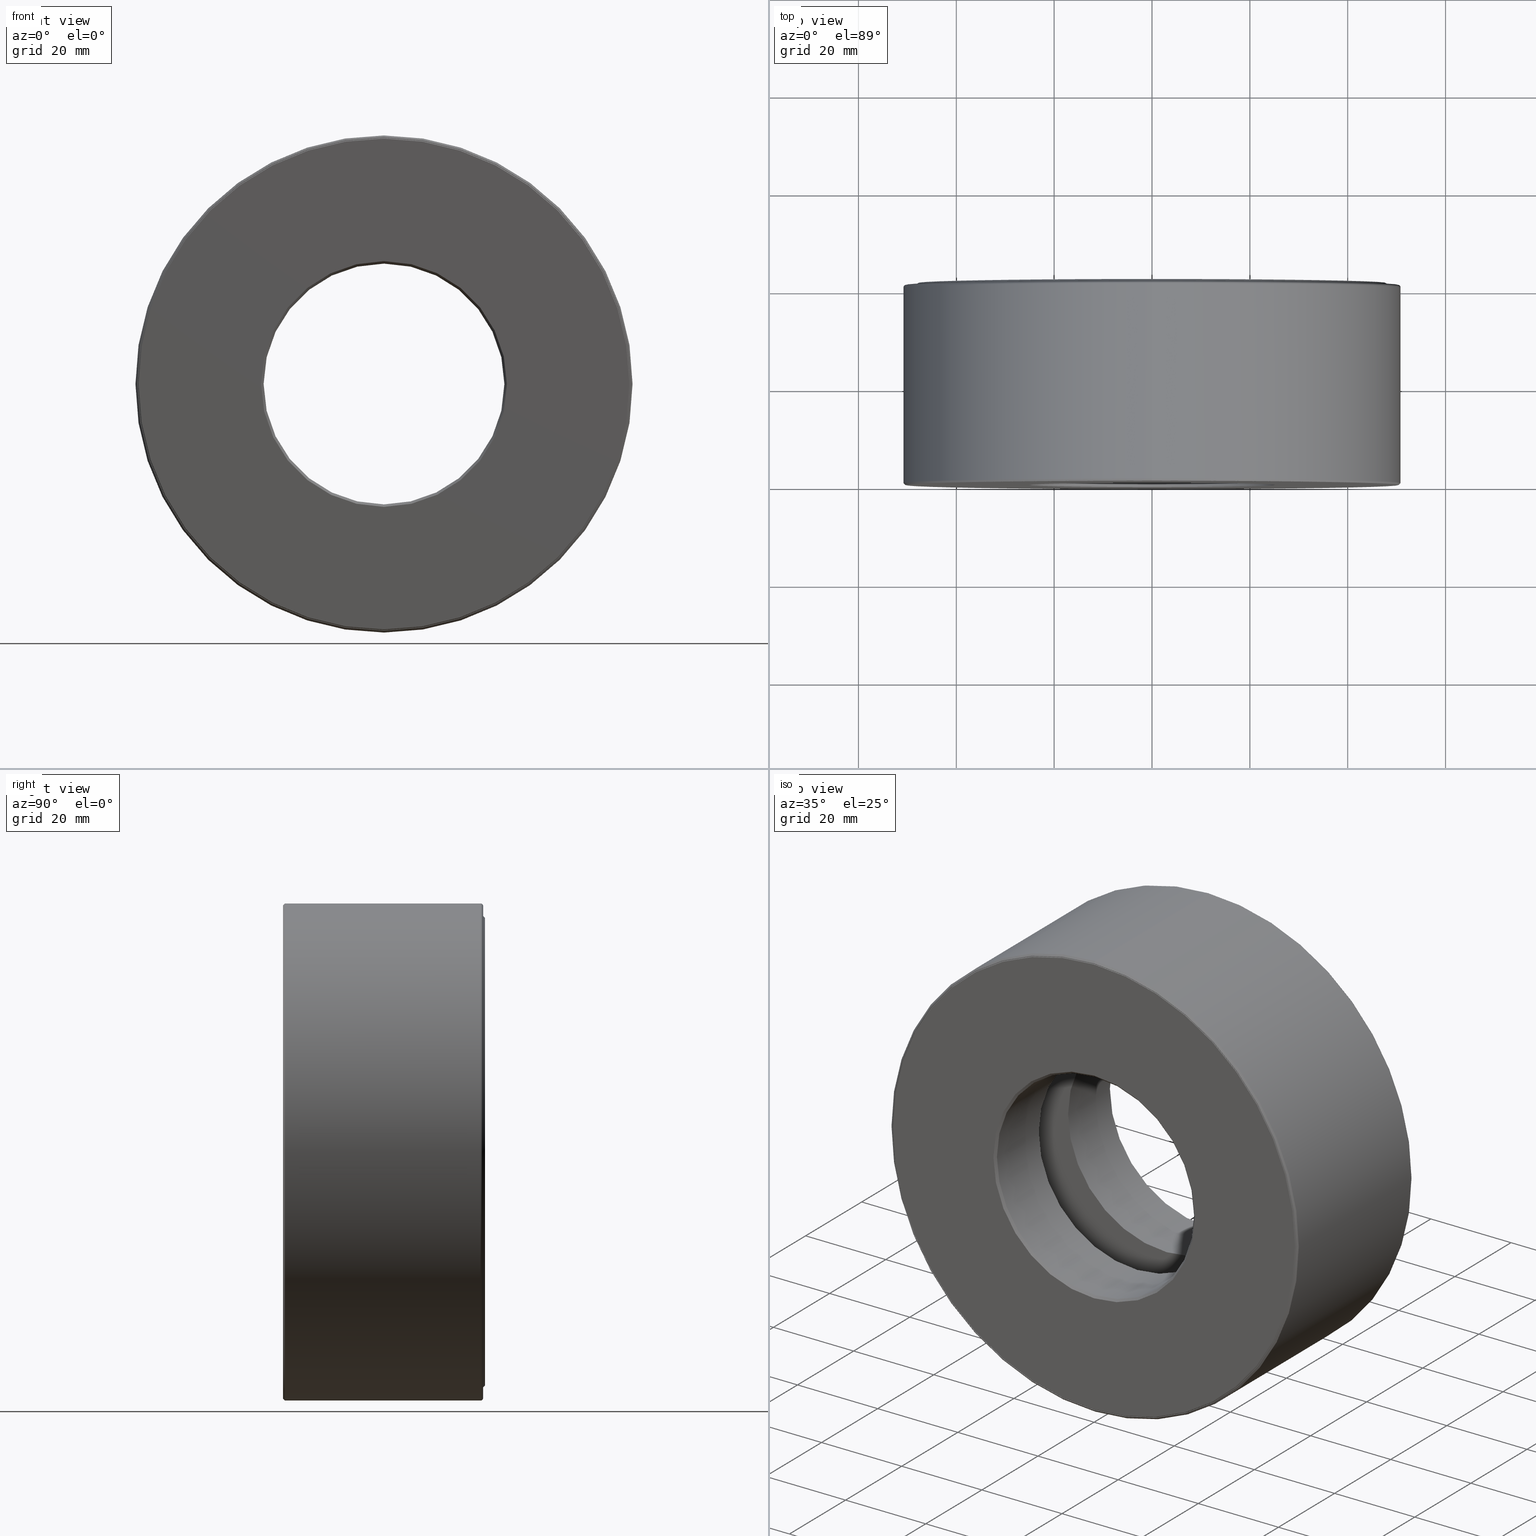
[diagram: canonical four-view strip — front | top / right | iso, engineering-drawing reading convention]
A machine part, canonical four-view strip (front | top / right | iso — engineering-drawing reading convention). The complete STEP part file that produces these views, byte-faithful:
ISO-10303-21;
HEADER;
FILE_DESCRIPTION (( 'STEP AP203' ),
    '1' );
FILE_NAME ('T-100-41A.step',
    '2016-06-29T18:27:36',
    ( '' ),
    ( '' ),
    'SwSTEP 2.0',
    'SolidWorks 2016',
    '' );
FILE_SCHEMA (( 'CONFIG_CONTROL_DESIGN' ));
ENDSEC;

DATA;
#1 = DIRECTION ( 'NONE',  ( -3.491481338843133000E-015, 0.0000000000000000000, -1.000000000000000000 ) ) ;
#2 = FACE_OUTER_BOUND ( 'NONE', #497, .T. ) ;
#3 = AXIS2_PLACEMENT_3D ( 'NONE', #98, #464, #103 ) ;
#4 = ADVANCED_FACE ( 'NONE', ( #586, #89 ), #112, .T. ) ;
#5 = CARTESIAN_POINT ( 'NONE',  ( 0.0000000000000000000, 1.589999999999999400, 1.919999999999999900 ) ) ;
#6 = CARTESIAN_POINT ( 'NONE',  ( -1.966834023707050000E-015, 1.018749999999999800, 0.0000000000000000000 ) ) ;
#7 = SECURITY_CLASSIFICATION ( '', '', #215 ) ;
#8 = DIRECTION ( 'NONE',  ( -0.0000000000000000000, 1.000000000000000000, -0.0000000000000000000 ) ) ;
#9 = APPROVAL_PERSON_ORGANIZATION ( #126, #574, #603 ) ;
#10 = FACE_BOUND ( 'NONE', #367, .T. ) ;
#11 = CARTESIAN_POINT ( 'NONE',  ( 0.0000000000000000000, -6.829619984160658000E-017, 0.9887500000000002400 ) ) ;
#12 = ORIENTED_EDGE ( 'NONE', *, *, #352, .F. ) ;
#13 = ADVANCED_FACE ( 'NONE', ( #478, #359 ), #71, .F. ) ;
#14 = CARTESIAN_POINT ( 'NONE',  ( 1.627249999999999900, 0.8124999999999998900, -1.136302601726497800E-014 ) ) ;
#15 = CARTESIAN_POINT ( 'NONE',  ( 0.0000000000000000000, 1.589999999999999400, 1.980000000000000000 ) ) ;
#16 = DIRECTION ( 'NONE',  ( -0.0000000000000000000, 1.000000000000000000, -0.0000000000000000000 ) ) ;
#17 = CIRCLE ( 'NONE', #312, 1.999999999999999300 ) ;
#18 = AXIS2_PLACEMENT_3D ( 'NONE', #571, #248, #393 ) ;
#19 = DIRECTION ( 'NONE',  ( 0.0000000000000000000, 0.0000000000000000000, 1.000000000000000000 ) ) ;
#20 = CARTESIAN_POINT ( 'NONE',  ( 0.0000000000000000000, 1.589999999999999400, 0.0000000000000000000 ) ) ;
#21 = EDGE_LOOP ( 'NONE', ( #153 ) ) ;
#22 = CARTESIAN_POINT ( 'NONE',  ( 0.0000000000000000000, -6.829619984160658000E-017, 0.0000000000000000000 ) ) ;
#23 = LOCAL_TIME ( 14, 27, 36.00000000000000000, #546 ) ;
#24 = FACE_OUTER_BOUND ( 'NONE', #21, .T. ) ;
#25 = CC_DESIGN_DATE_AND_TIME_ASSIGNMENT ( #353, #354, ( #7 ) ) ;
#26 = DIRECTION ( 'NONE',  ( -0.0000000000000000000, 1.000000000000000000, -0.0000000000000000000 ) ) ;
#27 = SPHERICAL_SURFACE ( 'NONE', #181, 0.3437499999999998300 ) ;
#28 = EDGE_LOOP ( 'NONE', ( #125 ) ) ;
#29 = DIRECTION ( 'NONE',  ( 0.0000000000000000000, -1.000000000000000000, 0.0000000000000000000 ) ) ;
#30 = CIRCLE ( 'NONE', #87, 0.9687500000000000000 ) ;
#31 = DIRECTION ( 'NONE',  ( 0.0000000000000000000, -0.0000000000000000000, -1.000000000000000000 ) ) ;
#32 = EDGE_CURVE ( 'NONE', #66, #66, #40, .T. ) ;
#33 = EDGE_CURVE ( 'NONE', #286, #286, #171, .T. ) ;
#34 = PRODUCT_RELATED_PRODUCT_CATEGORY ( 'detail', '', ( #191 ) ) ;
#35 = FACE_OUTER_BOUND ( 'NONE', #83, .T. ) ;
#36 = TOROIDAL_SURFACE ( 'NONE', #342, 1.627249999999999900, 0.3437499999999999400 ) ;
#37 = APPLICATION_PROTOCOL_DEFINITION ( 'international standard', 'config_control_design', 1994, #490 ) ;
#38 = CARTESIAN_POINT ( 'NONE',  ( 0.0000000000000000000, 1.018749999999999800, 0.9687500000000001100 ) ) ;
#39 = DIRECTION ( 'NONE',  ( 1.000000000000000000, 0.0000000000000000000, 0.0000000000000000000 ) ) ;
#40 = CIRCLE ( 'NONE', #470, 1.884999999999999800 ) ;
#41 = EDGE_LOOP ( 'NONE', ( #137 ) ) ;
#42 = ADVANCED_FACE ( 'NONE', ( ), #391, .T. ) ;
#43 = DIRECTION ( 'NONE',  ( 0.0000000000000000000, 0.0000000000000000000, 1.000000000000000000 ) ) ;
#44 = FACE_BOUND ( 'NONE', #218, .T. ) ;
#45 = DIRECTION ( 'NONE',  ( 1.047444401652939800E-014, 0.0000000000000000000, 1.000000000000000000 ) ) ;
#46 = AXIS2_PLACEMENT_3D ( 'NONE', #412, #355, #456 ) ;
#47 = EDGE_LOOP ( 'NONE', ( #200 ) ) ;
#48 = EDGE_LOOP ( 'NONE', ( #192 ) ) ;
#49 = VERTEX_POINT ( 'NONE', #58 ) ;
#50 = CONICAL_SURFACE ( 'NONE', #433, 0.9687500000000000000, 0.7853981633974295200 ) ;
#51 = DIRECTION ( 'NONE',  ( -0.0000000000000000000, 1.000000000000000000, -0.0000000000000000000 ) ) ;
#52 = PLANE ( 'NONE',  #556 ) ;
#53 = APPROVAL ( #402, 'UNSPECIFIED' ) ;
#54 = EDGE_LOOP ( 'NONE', ( #131 ) ) ;
#55 = CARTESIAN_POINT ( 'NONE',  ( 0.0000000000000000000, 1.604999999999998900, 0.9687500000000001100 ) ) ;
#56 = ADVANCED_FACE ( 'NONE', ( #306, #119 ), #86, .F. ) ;
#57 = FACE_OUTER_BOUND ( 'NONE', #28, .T. ) ;
#58 = CARTESIAN_POINT ( 'NONE',  ( 0.0000000000000000000, 0.6062499999999995100, 1.902249999999999600 ) ) ;
#59 = DIRECTION ( 'NONE',  ( -0.0000000000000000000, 1.000000000000000000, -0.0000000000000000000 ) ) ;
#60 = EDGE_CURVE ( 'NONE', #547, #547, #494, .T. ) ;
#61 = CIRCLE ( 'NONE', #400, 1.919999999999999900 ) ;
#62 = ORIENTED_EDGE ( 'NONE', *, *, #122, .T. ) ;
#63 = ORIENTED_EDGE ( 'NONE', *, *, #352, .T. ) ;
#64 = DIRECTION ( 'NONE',  ( 0.0000000000000000000, 0.0000000000000000000, 1.000000000000000000 ) ) ;
#65 = AXIS2_PLACEMENT_3D ( 'NONE', #416, #8, #274 ) ;
#66 = VERTEX_POINT ( 'NONE', #544 ) ;
#67 = CIRCLE ( 'NONE', #3, 1.979999999999999500 ) ;
#68 = DIRECTION ( 'NONE',  ( -0.0000000000000000000, 1.000000000000000000, -0.0000000000000000000 ) ) ;
#69 = DIRECTION ( 'NONE',  ( -0.0000000000000000000, 1.000000000000000000, -0.0000000000000000000 ) ) ;
#70 = ADVANCED_FACE ( 'NONE', ( ), #27, .T. ) ;
#71 = CONICAL_SURFACE ( 'NONE', #523, 0.9687500000000001100, 0.7853981633974311800 ) ;
#72 = DIRECTION ( 'NONE',  ( 0.0000000000000000000, -1.000000000000000000, 0.0000000000000000000 ) ) ;
#73 = PLANE ( 'NONE',  #446 ) ;
#74 = PERSON_AND_ORGANIZATION ( #244, #454 ) ;
#75 = CIRCLE ( 'NONE', #442, 1.979999999999999500 ) ;
#76 = DIRECTION ( 'NONE',  ( 0.0000000000000000000, 0.0000000000000000000, 1.000000000000000000 ) ) ;
#77 = FACE_BOUND ( 'NONE', #47, .T. ) ;
#78 = ORIENTED_EDGE ( 'NONE', *, *, #333, .T. ) ;
#79 = VERTEX_POINT ( 'NONE', #38 ) ;
#80 = APPLICATION_PROTOCOL_DEFINITION ( 'international standard', 'config_control_design', 1994, #593 ) ;
#81 = ORIENTED_EDGE ( 'NONE', *, *, #573, .T. ) ;
#82 = CARTESIAN_POINT ( 'NONE',  ( 0.0000000000000000000, 1.536999999999999900, 1.972999999999999400 ) ) ;
#83 = EDGE_LOOP ( 'NONE', ( #522 ) ) ;
#84 = PERSON_AND_ORGANIZATION_ROLE ( 'creator' ) ;
#85 = CC_DESIGN_SECURITY_CLASSIFICATION ( #7, ( #304 ) ) ;
#86 = PLANE ( 'NONE',  #447 ) ;
#87 = AXIS2_PLACEMENT_3D ( 'NONE', #526, #246, #575 ) ;
#88 = DATE_TIME_ROLE ( 'creation_date' ) ;
#89 = FACE_OUTER_BOUND ( 'NONE', #104, .T. ) ;
#90 = ORIENTED_EDGE ( 'NONE', *, *, #92, .F. ) ;
#91 = ORIENTED_EDGE ( 'NONE', *, *, #347, .T. ) ;
#92 = EDGE_CURVE ( 'NONE', #356, #356, #61, .T. ) ;
#93 = PERSON_AND_ORGANIZATION ( #244, #454 ) ;
#94 = VERTEX_POINT ( 'NONE', #566 ) ;
#95 = AXIS2_PLACEMENT_3D ( 'NONE', #460, #376, #565 ) ;
#96 = CARTESIAN_POINT ( 'NONE',  ( 0.0000000000000000000, 1.609999999999999400, 1.919999999999999900 ) ) ;
#97 = ORIENTED_EDGE ( 'NONE', *, *, #299, .F. ) ;
#98 = CARTESIAN_POINT ( 'NONE',  ( 0.0000000000000000000, 0.005000000000000445100, 0.0000000000000000000 ) ) ;
#99 = DIRECTION ( 'NONE',  ( 0.0000000000000000000, 0.0000000000000000000, 1.000000000000000000 ) ) ;
#100 = VERTEX_POINT ( 'NONE', #5 ) ;
#101 = FACE_OUTER_BOUND ( 'NONE', #537, .T. ) ;
#102 = CARTESIAN_POINT ( 'NONE',  ( 0.0000000000000000000, 1.589999999999999400, 0.0000000000000000000 ) ) ;
#103 = DIRECTION ( 'NONE',  ( 0.0000000000000000000, 0.0000000000000000000, 1.000000000000000000 ) ) ;
#104 = EDGE_LOOP ( 'NONE', ( #63 ) ) ;
#105 = EDGE_LOOP ( 'NONE', ( #240 ) ) ;
#106 = ORIENTED_EDGE ( 'NONE', *, *, #216, .T. ) ;
#107 = CARTESIAN_POINT ( 'NONE',  ( 0.0000000000000000000, 1.609999999999999400, 0.0000000000000000000 ) ) ;
#108 = CC_DESIGN_PERSON_AND_ORGANIZATION_ASSIGNMENT ( #338, #448, ( #7 ) ) ;
#109 = CALENDAR_DATE ( 2016, 29, 6 ) ;
#110 = DIRECTION ( 'NONE',  ( -0.0000000000000000000, 1.000000000000000000, -0.0000000000000000000 ) ) ;
#111 = DIRECTION ( 'NONE',  ( -0.0000000000000000000, 1.000000000000000000, -0.0000000000000000000 ) ) ;
#112 = CYLINDRICAL_SURFACE ( 'NONE', #176, 1.999999999999999800 ) ;
#113 = ADVANCED_FACE ( 'NONE', ( #310, #77 ), #50, .F. ) ;
#114 = CALENDAR_DATE ( 2016, 29, 6 ) ;
#115 = LOCAL_TIME ( 14, 27, 36.00000000000000000, #233 ) ;
#116 = FACE_OUTER_BOUND ( 'NONE', #275, .T. ) ;
#117 =( GEOMETRIC_REPRESENTATION_CONTEXT ( 3 ) GLOBAL_UNCERTAINTY_ASSIGNED_CONTEXT ( ( #519 ) ) GLOBAL_UNIT_ASSIGNED_CONTEXT ( ( #351, #217, #225 ) ) REPRESENTATION_CONTEXT ( 'NONE', 'WORKASPACE' ) );
#118 = DIRECTION ( 'NONE',  ( -0.0000000000000000000, 1.000000000000000000, -0.0000000000000000000 ) ) ;
#119 = FACE_OUTER_BOUND ( 'NONE', #345, .T. ) ;
#120 = EDGE_LOOP ( 'NONE', ( #211 ) ) ;
#121 = PLANE ( 'NONE',  #491 ) ;
#122 = EDGE_CURVE ( 'NONE', #79, #79, #552, .T. ) ;
#123 = FACE_OUTER_BOUND ( 'NONE', #311, .T. ) ;
#124 = CARTESIAN_POINT ( 'NONE',  ( 0.0000000000000000000, 1.604999999999998900, 0.0000000000000000000 ) ) ;
#125 = ORIENTED_EDGE ( 'NONE', *, *, #152, .T. ) ;
#126 = PERSON_AND_ORGANIZATION ( #244, #454 ) ;
#127 = FACE_OUTER_BOUND ( 'NONE', #145, .T. ) ;
#128 = APPROVAL_STATUS ( 'not_yet_approved' ) ;
#129 = DIRECTION ( 'NONE',  ( 0.0000000000000000000, -0.0000000000000000000, -1.000000000000000000 ) ) ;
#130 = CLOSED_SHELL ( 'NONE', ( #284, #524, #379, #518, #224, #56, #510, #4, #423, #576, #529, #515, #457, #113, #157, #474 ) ) ;
#131 = ORIENTED_EDGE ( 'NONE', *, *, #539, .T. ) ;
#132 = PERSON_AND_ORGANIZATION_ROLE ( 'creator' ) ;
#133 = CARTESIAN_POINT ( 'NONE',  ( 0.0000000000000000000, 0.02000000000000087800, 0.0000000000000000000 ) ) ;
#134 = FACE_OUTER_BOUND ( 'NONE', #459, .T. ) ;
#135 = AXIS2_PLACEMENT_3D ( 'NONE', #395, #72, #212 ) ;
#136 = EDGE_LOOP ( 'NONE', ( #106 ) ) ;
#137 = ORIENTED_EDGE ( 'NONE', *, *, #152, .F. ) ;
#138 = EDGE_CURVE ( 'NONE', #100, #100, #536, .T. ) ;
#139 = CARTESIAN_POINT ( 'NONE',  ( 0.0000000000000000000, 0.6062499999999996200, 1.352250000000000400 ) ) ;
#140 = CARTESIAN_POINT ( 'NONE',  ( 0.0000000000000000000, 0.8124999999999998900, 0.0000000000000000000 ) ) ;
#141 = FACE_OUTER_BOUND ( 'NONE', #147, .T. ) ;
#142 = CC_DESIGN_PERSON_AND_ORGANIZATION_ASSIGNMENT ( #340, #132, ( #290 ) ) ;
#143 = ADVANCED_FACE ( 'NONE', ( #425, #483 ), #52, .T. ) ;
#144 = CARTESIAN_POINT ( 'NONE',  ( 0.0000000000000000000, -1.013771716398847500E-016, 1.974999999999999900 ) ) ;
#145 = EDGE_LOOP ( 'NONE', ( #253 ) ) ;
#146 = DIRECTION ( 'NONE',  ( 0.0000000000000000000, 0.0000000000000000000, 1.000000000000000000 ) ) ;
#147 = EDGE_LOOP ( 'NONE', ( #247 ) ) ;
#148 = CARTESIAN_POINT ( 'NONE',  ( 0.0000000000000000000, 1.018750000000000000, 1.352250000000000400 ) ) ;
#149 = CIRCLE ( 'NONE', #228, 1.985000000000000100 ) ;
#150 = CARTESIAN_POINT ( 'NONE',  ( 0.0000000000000000000, 0.005000000000000445100, 1.979999999999999500 ) ) ;
#151 = DIRECTION ( 'NONE',  ( -0.0000000000000000000, 1.000000000000000000, -0.0000000000000000000 ) ) ;
#152 = EDGE_CURVE ( 'NONE', #581, #581, #308, .T. ) ;
#153 = ORIENTED_EDGE ( 'NONE', *, *, #32, .T. ) ;
#154 = DIRECTION ( 'NONE',  ( 0.0000000000000000000, 0.0000000000000000000, 1.000000000000000000 ) ) ;
#155 = AXIS2_PLACEMENT_3D ( 'NONE', #14, #272, #232 ) ;
#156 = CIRCLE ( 'NONE', #349, 1.979999999999999500 ) ;
#157 = ADVANCED_FACE ( 'NONE', ( #296, #341 ), #509, .F. ) ;
#158 = DIRECTION ( 'NONE',  ( -0.0000000000000000000, 1.000000000000000000, -0.0000000000000000000 ) ) ;
#159 = DIRECTION ( 'NONE',  ( -0.0000000000000000000, 1.000000000000000000, 0.0000000000000000000 ) ) ;
#160 = CLOSED_SHELL ( 'NONE', ( #143, #328, #549, #580, #13, #335, #602, #271 ) ) ;
#161 = DIRECTION ( 'NONE',  ( -0.0000000000000000000, 1.000000000000000000, 0.0000000000000000000 ) ) ;
#162 = FACE_OUTER_BOUND ( 'NONE', #167, .T. ) ;
#163 = CARTESIAN_POINT ( 'NONE',  ( -1.044702911599102200E-032, -8.483668574074566000E-017, 0.0000000000000000000 ) ) ;
#164 = DIRECTION ( 'NONE',  ( 0.0000000000000000000, 0.0000000000000000000, 1.000000000000000000 ) ) ;
#165 = EDGE_LOOP ( 'NONE', ( #12 ) ) ;
#166 = CARTESIAN_POINT ( 'NONE',  ( -4.318599338093769600E-016, 0.6062499999999997300, 0.0000000000000000000 ) ) ;
#167 = EDGE_LOOP ( 'NONE', ( #360 ) ) ;
#168 = DATE_AND_TIME ( #114, #540 ) ;
#169 = SPHERICAL_SURFACE ( 'NONE', #155, 0.3437499999999998300 ) ;
#170 = DIRECTION ( 'NONE',  ( 0.0000000000000000000, 0.0000000000000000000, 1.000000000000000000 ) ) ;
#171 = CIRCLE ( 'NONE', #568, 0.9887500000000003500 ) ;
#172 = EDGE_LOOP ( 'NONE', ( #486 ) ) ;
#173 = CONICAL_SURFACE ( 'NONE', #314, 1.974999999999999900, 0.7853981633973746700 ) ;
#174 = DIRECTION ( 'NONE',  ( -1.000000000000000000, 0.0000000000000000000, 3.491481338843133000E-015 ) ) ;
#175 = DATE_AND_TIME ( #334, #419 ) ;
#176 = AXIS2_PLACEMENT_3D ( 'NONE', #493, #262, #601 ) ;
#177 = ORIENTED_EDGE ( 'NONE', *, *, #333, .F. ) ;
#178 = DIRECTION ( 'NONE',  ( 0.0000000000000000000, -1.000000000000000000, 0.0000000000000000000 ) ) ;
#179 = DIRECTION ( 'NONE',  ( 0.0000000000000000000, 0.0000000000000000000, -1.000000000000000000 ) ) ;
#180 = VERTEX_POINT ( 'NONE', #237 ) ;
#181 = AXIS2_PLACEMENT_3D ( 'NONE', #551, #174, #1 ) ;
#182 = CARTESIAN_POINT ( 'NONE',  ( 0.0000000000000000000, -1.024442997624098700E-016, 1.985000000000000100 ) ) ;
#183 = DIRECTION ( 'NONE',  ( -0.0000000000000000000, 1.000000000000000000, -0.0000000000000000000 ) ) ;
#184 = EDGE_LOOP ( 'NONE', ( #538 ) ) ;
#185 = EDGE_LOOP ( 'NONE', ( #78 ) ) ;
#186 = CARTESIAN_POINT ( 'NONE',  ( 0.0000000000000000000, 0.01499999999999984000, 1.999999999999999300 ) ) ;
#187 = DIRECTION ( 'NONE',  ( -0.0000000000000000000, 1.000000000000000000, -0.0000000000000000000 ) ) ;
#188 = SHAPE_DEFINITION_REPRESENTATION ( #390, #300 ) ;
#189 = CIRCLE ( 'NONE', #194, 1.974999999999999900 ) ;
#190 = EDGE_LOOP ( 'NONE', ( #90 ) ) ;
#191 = PRODUCT ( 'T-100-41A', 'T-100-41A', '', ( #496 ) ) ;
#192 = ORIENTED_EDGE ( 'NONE', *, *, #216, .F. ) ;
#193 = AXIS2_PLACEMENT_3D ( 'NONE', #107, #151, #19 ) ;
#194 = AXIS2_PLACEMENT_3D ( 'NONE', #434, #158, #535 ) ;
#195 = DIRECTION ( 'NONE',  ( -0.0000000000000000000, 1.000000000000000000, -0.0000000000000000000 ) ) ;
#196 = LOCAL_TIME ( 14, 27, 36.00000000000000000, #277 ) ;
#197 = FACE_BOUND ( 'NONE', #120, .T. ) ;
#198 = DIRECTION ( 'NONE',  ( 0.0000000000000000000, 0.0000000000000000000, 1.000000000000000000 ) ) ;
#199 = EDGE_CURVE ( 'NONE', #301, #301, #207, .T. ) ;
#200 = ORIENTED_EDGE ( 'NONE', *, *, #386, .T. ) ;
#201 = EDGE_LOOP ( 'NONE', ( #604 ) ) ;
#202 = DIRECTION ( 'NONE',  ( -0.0000000000000000000, 1.000000000000000000, -0.0000000000000000000 ) ) ;
#203 = PERSON_AND_ORGANIZATION ( #244, #454 ) ;
#204 = AXIS2_PLACEMENT_3D ( 'NONE', #166, #29, #214 ) ;
#205 = CARTESIAN_POINT ( 'NONE',  ( 0.0000000000000000000, 0.0000000000000000000, 0.0000000000000000000 ) ) ;
#206 = VERTEX_POINT ( 'NONE', #373 ) ;
#207 = CIRCLE ( 'NONE', #484, 1.352250000000000400 ) ;
#208 = DIRECTION ( 'NONE',  ( -0.0000000000000000000, 1.000000000000000000, -0.0000000000000000000 ) ) ;
#209 = PLANE ( 'NONE',  #420 ) ;
#210 = EDGE_LOOP ( 'NONE', ( #97 ) ) ;
#211 = ORIENTED_EDGE ( 'NONE', *, *, #32, .F. ) ;
#212 = DIRECTION ( 'NONE',  ( 0.0000000000000000000, -0.0000000000000000000, -1.000000000000000000 ) ) ;
#213 = VERTEX_POINT ( 'NONE', #417 ) ;
#214 = DIRECTION ( 'NONE',  ( 0.0000000000000000000, -0.0000000000000000000, -1.000000000000000000 ) ) ;
#215 = SECURITY_CLASSIFICATION_LEVEL ( 'unclassified' ) ;
#216 = EDGE_CURVE ( 'NONE', #449, #449, #75, .T. ) ;
#217 =( NAMED_UNIT ( * ) PLANE_ANGLE_UNIT ( ) SI_UNIT ( $, .RADIAN. ) );
#218 = EDGE_LOOP ( 'NONE', ( #426 ) ) ;
#219 = COORDINATED_UNIVERSAL_TIME_OFFSET ( 5, 0, .BEHIND. ) ;
#220 = APPROVAL_STATUS ( 'not_yet_approved' ) ;
#221 = COORDINATED_UNIVERSAL_TIME_OFFSET ( 5, 0, .BEHIND. ) ;
#222 = CIRCLE ( 'NONE', #193, 1.980000000000000000 ) ;
#223 = CARTESIAN_POINT ( 'NONE',  ( 0.0000000000000000000, 1.624999999999999800, 0.0000000000000000000 ) ) ;
#224 = ADVANCED_FACE ( 'NONE', ( #134, #123 ), #364, .F. ) ;
#225 =( NAMED_UNIT ( * ) SI_UNIT ( $, .STERADIAN. ) SOLID_ANGLE_UNIT ( ) );
#226 = EDGE_LOOP ( 'NONE', ( #403 ) ) ;
#227 = PERSON_AND_ORGANIZATION ( #244, #454 ) ;
#228 = AXIS2_PLACEMENT_3D ( 'NONE', #283, #202, #531 ) ;
#229 = AXIS2_PLACEMENT_3D ( 'NONE', #585, #346, #589 ) ;
#230 = ADVANCED_FACE ( 'NONE', ( ), #169, .T. ) ;
#231 = DIRECTION ( 'NONE',  ( 0.0000000000000000000, -0.0000000000000000000, -1.000000000000000000 ) ) ;
#232 = DIRECTION ( 'NONE',  ( -1.000000000000000000, 0.0000000000000000000, 6.982962677686265900E-015 ) ) ;
#233 = COORDINATED_UNIVERSAL_TIME_OFFSET ( 5, 0, .BEHIND. ) ;
#234 = DESIGN_CONTEXT ( 'detailed design', #490, 'design' ) ;
#235 = CIRCLE ( 'NONE', #471, 2.000000000000000000 ) ;
#236 = CC_DESIGN_DATE_AND_TIME_ASSIGNMENT ( #168, #88, ( #290 ) ) ;
#237 = CARTESIAN_POINT ( 'NONE',  ( 0.0000000000000000000, 0.02000000000000087800, 0.9687500000000000000 ) ) ;
#238 = CARTESIAN_POINT ( 'NONE',  ( 0.0000000000000000000, 1.018749999999999800, 0.0000000000000000000 ) ) ;
#239 = EDGE_LOOP ( 'NONE', ( #398 ) ) ;
#240 = ORIENTED_EDGE ( 'NONE', *, *, #347, .F. ) ;
#241 = AXIS2_PLACEMENT_3D ( 'NONE', #337, #430, #198 ) ;
#242 = EDGE_LOOP ( 'NONE', ( #427 ) ) ;
#243 = CIRCLE ( 'NONE', #294, 0.9887500000000002400 ) ;
#244 = PERSON ( 'UNSPECIFIED', 'UNSPECIFIED', 'UNSPECIFIED', ('UNSPECIFIED'), ('UNSPECIFIED'), ('UNSPECIFIED') ) ;
#245 = MANIFOLD_SOLID_BREP ( 'BALLS[1]', #465 ) ;
#246 = DIRECTION ( 'NONE',  ( -0.0000000000000000000, 1.000000000000000000, -0.0000000000000000000 ) ) ;
#247 = ORIENTED_EDGE ( 'NONE', *, *, #383, .F. ) ;
#248 = DIRECTION ( 'NONE',  ( 0.0000000000000000000, 0.0000000000000000000, -1.000000000000000000 ) ) ;
#249 = FACE_OUTER_BOUND ( 'NONE', #242, .T. ) ;
#250 = DIRECTION ( 'NONE',  ( 0.0000000000000000000, 0.0000000000000000000, 1.000000000000000000 ) ) ;
#251 = MANIFOLD_SOLID_BREP ( 'BALLS[2]', #257 ) ;
#252 = ORIENTED_EDGE ( 'NONE', *, *, #330, .F. ) ;
#253 = ORIENTED_EDGE ( 'NONE', *, *, #270, .F. ) ;
#254 = CIRCLE ( 'NONE', #256, 0.9687500000000001100 ) ;
#255 = AXIS2_PLACEMENT_3D ( 'NONE', #20, #16, #326 ) ;
#256 = AXIS2_PLACEMENT_3D ( 'NONE', #124, #588, #437 ) ;
#257 = CLOSED_SHELL ( 'NONE', ( #230 ) ) ;
#258 = PERSON_AND_ORGANIZATION_ROLE ( 'design_owner' ) ;
#259 = VERTEX_POINT ( 'NONE', #182 ) ;
#260 = FACE_OUTER_BOUND ( 'NONE', #325, .T. ) ;
#261 = ORIENTED_EDGE ( 'NONE', *, *, #383, .T. ) ;
#262 = DIRECTION ( 'NONE',  ( -0.0000000000000000000, 1.000000000000000000, -0.0000000000000000000 ) ) ;
#263 = DIRECTION ( 'NONE',  ( 0.0000000000000000000, 0.0000000000000000000, 1.000000000000000000 ) ) ;
#264 = CIRCLE ( 'NONE', #255, 1.980000000000000000 ) ;
#265 = CARTESIAN_POINT ( 'NONE',  ( 0.0000000000000000000, 0.6062499999999999600, 0.0000000000000000000 ) ) ;
#266 = CARTESIAN_POINT ( 'NONE',  ( 0.0000000000000000000, 0.6062499999999996200, 1.979999999999999500 ) ) ;
#267 = DIRECTION ( 'NONE',  ( 0.0000000000000000000, 0.0000000000000000000, -1.000000000000000000 ) ) ;
#268 = ORIENTED_EDGE ( 'NONE', *, *, #33, .T. ) ;
#269 = CARTESIAN_POINT ( 'NONE',  ( 0.0000000000000000000, 1.604999999999998900, 0.0000000000000000000 ) ) ;
#270 = EDGE_CURVE ( 'NONE', #331, #331, #67, .T. ) ;
#271 = ADVANCED_FACE ( 'NONE', ( #394, #527 ), #401, .T. ) ;
#272 = DIRECTION ( 'NONE',  ( 6.982962677686265900E-015, -0.0000000000000000000, 1.000000000000000000 ) ) ;
#273 = TOROIDAL_SURFACE ( 'NONE', #532, 1.627249999999999900, 0.3437499999999998300 ) ;
#274 = DIRECTION ( 'NONE',  ( 0.0000000000000000000, 0.0000000000000000000, 1.000000000000000000 ) ) ;
#275 = EDGE_LOOP ( 'NONE', ( #361 ) ) ;
#276 = DIRECTION ( 'NONE',  ( 0.0000000000000000000, 0.0000000000000000000, 1.000000000000000000 ) ) ;
#277 = COORDINATED_UNIVERSAL_TIME_OFFSET ( 5, 0, .BEHIND. ) ;
#278 = FACE_OUTER_BOUND ( 'NONE', #201, .T. ) ;
#279 = CARTESIAN_POINT ( 'NONE',  ( 0.0000000000000000000, 1.018750000000000000, 0.0000000000000000000 ) ) ;
#280 = AXIS2_PLACEMENT_3D ( 'NONE', #279, #69, #389 ) ;
#281 = ORIENTED_EDGE ( 'NONE', *, *, #60, .T. ) ;
#282 = AXIS2_PLACEMENT_3D ( 'NONE', #298, #208, #76 ) ;
#283 = CARTESIAN_POINT ( 'NONE',  ( 0.0000000000000000000, -1.024442997624098700E-016, 0.0000000000000000000 ) ) ;
#284 = ADVANCED_FACE ( 'NONE', ( #278, #162 ), #36, .F. ) ;
#285 = CARTESIAN_POINT ( 'NONE',  ( 0.0000000000000000000, -1.024442997624098700E-016, 0.0000000000000000000 ) ) ;
#286 = VERTEX_POINT ( 'NONE', #558 ) ;
#287 = FACE_BOUND ( 'NONE', #297, .T. ) ;
#288 = EDGE_LOOP ( 'NONE', ( #62 ) ) ;
#289 = CALENDAR_DATE ( 2016, 29, 6 ) ;
#290 = PRODUCT_DEFINITION ( 'UNKNOWN', '', #304, #234 ) ;
#291 = FACE_OUTER_BOUND ( 'NONE', #587, .T. ) ;
#292 = FACE_OUTER_BOUND ( 'NONE', #54, .T. ) ;
#293 = CARTESIAN_POINT ( 'NONE',  ( 0.0000000000000000000, -1.013771716398847500E-016, 0.0000000000000000000 ) ) ;
#294 = AXIS2_PLACEMENT_3D ( 'NONE', #22, #195, #64 ) ;
#295 = DIRECTION ( 'NONE',  ( 0.0000000000000000000, 0.0000000000000000000, 1.000000000000000000 ) ) ;
#296 = FACE_OUTER_BOUND ( 'NONE', #172, .T. ) ;
#297 = EDGE_LOOP ( 'NONE', ( #453 ) ) ;
#298 = CARTESIAN_POINT ( 'NONE',  ( 0.0000000000000000000, 1.589999999999999400, 0.0000000000000000000 ) ) ;
#299 = EDGE_CURVE ( 'NONE', #213, #213, #222, .T. ) ;
#300 = ADVANCED_BREP_SHAPE_REPRESENTATION ( 'T-100-41A', ( #438, #570, #599, #245, #251, #508, #505 ), #117 ) ;
#301 = VERTEX_POINT ( 'NONE', #139 ) ;
#302 = PERSON_AND_ORGANIZATION_ROLE ( 'design_supplier' ) ;
#303 = EDGE_CURVE ( 'NONE', #259, #259, #149, .T. ) ;
#304 = PRODUCT_DEFINITION_FORMATION_WITH_SPECIFIED_SOURCE ( 'ANY', '', #191, .NOT_KNOWN. ) ;
#305 = CARTESIAN_POINT ( 'NONE',  ( 0.0000000000000000000, 1.624999999999999800, 0.0000000000000000000 ) ) ;
#306 = FACE_BOUND ( 'NONE', #190, .T. ) ;
#307 = EDGE_LOOP ( 'NONE', ( #404 ) ) ;
#308 = CIRCLE ( 'NONE', #95, 1.972999999999999400 ) ;
#309 = DIRECTION ( 'NONE',  ( 0.0000000000000000000, 0.0000000000000000000, 1.000000000000000000 ) ) ;
#310 = FACE_OUTER_BOUND ( 'NONE', #592, .T. ) ;
#311 = EDGE_LOOP ( 'NONE', ( #441 ) ) ;
#312 = AXIS2_PLACEMENT_3D ( 'NONE', #384, #68, #469 ) ;
#313 = DIRECTION ( 'NONE',  ( -0.0000000000000000000, 1.000000000000000000, -0.0000000000000000000 ) ) ;
#314 = AXIS2_PLACEMENT_3D ( 'NONE', #293, #26, #343 ) ;
#315 = CONICAL_SURFACE ( 'NONE', #562, 1.884999999999999800, 0.7853981633974482800 ) ;
#316 = DIRECTION ( 'NONE',  ( -0.0000000000000000000, 1.000000000000000000, 0.0000000000000000000 ) ) ;
#317 = DIRECTION ( 'NONE',  ( -0.0000000000000000000, 1.000000000000000000, -0.0000000000000000000 ) ) ;
#318 = CARTESIAN_POINT ( 'NONE',  ( 0.0000000000000000000, 0.6062499999999996200, 0.0000000000000000000 ) ) ;
#319 = ORIENTED_EDGE ( 'NONE', *, *, #303, .F. ) ;
#320 = DIRECTION ( 'NONE',  ( 0.0000000000000000000, 0.0000000000000000000, 1.000000000000000000 ) ) ;
#321 = VERTEX_POINT ( 'NONE', #11 ) ;
#322 = FACE_OUTER_BOUND ( 'NONE', #136, .T. ) ;
#323 = CC_DESIGN_PERSON_AND_ORGANIZATION_ASSIGNMENT ( #203, #84, ( #304 ) ) ;
#324 = DIRECTION ( 'NONE',  ( 0.0000000000000000000, -1.000000000000000000, 0.0000000000000000000 ) ) ;
#325 = EDGE_LOOP ( 'NONE', ( #177 ) ) ;
#326 = DIRECTION ( 'NONE',  ( 0.0000000000000000000, 0.0000000000000000000, 1.000000000000000000 ) ) ;
#327 = ORIENTED_EDGE ( 'NONE', *, *, #122, .F. ) ;
#328 = ADVANCED_FACE ( 'NONE', ( #101, #564 ), #273, .F. ) ;
#329 = PLANE ( 'NONE',  #241 ) ;
#330 = EDGE_CURVE ( 'NONE', #94, #94, #516, .T. ) ;
#331 = VERTEX_POINT ( 'NONE', #150 ) ;
#332 = DIRECTION ( 'NONE',  ( 0.0000000000000000000, 0.0000000000000000000, 1.000000000000000000 ) ) ;
#333 = EDGE_CURVE ( 'NONE', #557, #557, #264, .T. ) ;
#334 = CALENDAR_DATE ( 2016, 29, 6 ) ;
#335 = ADVANCED_FACE ( 'NONE', ( #24, #421 ), #329, .T. ) ;
#336 = CC_DESIGN_APPROVAL ( #424, ( #304 ) ) ;
#337 = CARTESIAN_POINT ( 'NONE',  ( 0.0000000000000000000, 1.624999999999999800, 0.0000000000000000000 ) ) ;
#338 = PERSON_AND_ORGANIZATION ( #244, #454 ) ;
#339 = CARTESIAN_POINT ( 'NONE',  ( 0.0000000000000000000, 1.589999999999999400, 0.0000000000000000000 ) ) ;
#340 = PERSON_AND_ORGANIZATION ( #244, #454 ) ;
#341 = FACE_OUTER_BOUND ( 'NONE', #411, .T. ) ;
#342 = AXIS2_PLACEMENT_3D ( 'NONE', #140, #511, #99 ) ;
#343 = DIRECTION ( 'NONE',  ( 0.0000000000000000000, 0.0000000000000000000, 1.000000000000000000 ) ) ;
#344 = ORIENTED_EDGE ( 'NONE', *, *, #397, .T. ) ;
#345 = EDGE_LOOP ( 'NONE', ( #605 ) ) ;
#346 = DIRECTION ( 'NONE',  ( -0.0000000000000000000, 1.000000000000000000, -0.0000000000000000000 ) ) ;
#347 = EDGE_CURVE ( 'NONE', #206, #206, #476, .T. ) ;
#348 = DIRECTION ( 'NONE',  ( 0.0000000000000000000, 0.0000000000000000000, 1.000000000000000000 ) ) ;
#349 = AXIS2_PLACEMENT_3D ( 'NONE', #381, #110, #154 ) ;
#350 = CARTESIAN_POINT ( 'NONE',  ( 0.0000000000000000000, 0.0000000000000000000, 0.0000000000000000000 ) ) ;
#351 =( CONVERSION_BASED_UNIT ( 'INCH', #399 ) LENGTH_UNIT ( ) NAMED_UNIT ( #472 ) );
#352 = EDGE_CURVE ( 'NONE', #468, #468, #17, .T. ) ;
#353 = DATE_AND_TIME ( #289, #23 ) ;
#354 = DATE_TIME_ROLE ( 'classification_date' ) ;
#355 = DIRECTION ( 'NONE',  ( -0.0000000000000000000, 1.000000000000000000, -0.0000000000000000000 ) ) ;
#356 = VERTEX_POINT ( 'NONE', #96 ) ;
#357 = FACE_OUTER_BOUND ( 'NONE', #48, .T. ) ;
#358 = CC_DESIGN_APPROVAL ( #53, ( #7 ) ) ;
#359 = FACE_BOUND ( 'NONE', #307, .T. ) ;
#360 = ORIENTED_EDGE ( 'NONE', *, *, #501, .T. ) ;
#361 = ORIENTED_EDGE ( 'NONE', *, *, #270, .T. ) ;
#362 = CARTESIAN_POINT ( 'NONE',  ( 0.0000000000000000000, 1.609999999999999400, 0.0000000000000000000 ) ) ;
#363 = DATE_AND_TIME ( #498, #196 ) ;
#364 = CYLINDRICAL_SURFACE ( 'NONE', #487, 1.919999999999999900 ) ;
#365 = AXIS2_PLACEMENT_3D ( 'NONE', #102, #567, #368 ) ;
#366 = DIRECTION ( 'NONE',  ( 0.0000000000000000000, -1.000000000000000000, 0.0000000000000000000 ) ) ;
#367 = EDGE_LOOP ( 'NONE', ( #479 ) ) ;
#368 = DIRECTION ( 'NONE',  ( 0.0000000000000000000, 0.0000000000000000000, 1.000000000000000000 ) ) ;
#369 = EDGE_CURVE ( 'NONE', #321, #321, #243, .T. ) ;
#370 = CARTESIAN_POINT ( 'NONE',  ( 0.0000000000000000000, -1.022579917998702600E-016, 1.979999999999999500 ) ) ;
#371 = CARTESIAN_POINT ( 'NONE',  ( 0.0000000000000000000, 0.0000000000000000000, 0.0000000000000000000 ) ) ;
#372 = FACE_BOUND ( 'NONE', #480, .T. ) ;
#373 = CARTESIAN_POINT ( 'NONE',  ( 0.0000000000000000000, 1.018750000000000000, 1.902249999999999600 ) ) ;
#374 = CARTESIAN_POINT ( 'NONE',  ( 0.0000000000000000000, 0.6062499999999996200, 0.0000000000000000000 ) ) ;
#375 = AXIS2_PLACEMENT_3D ( 'NONE', #371, #183, #413 ) ;
#376 = DIRECTION ( 'NONE',  ( -0.0000000000000000000, 1.000000000000000000, -0.0000000000000000000 ) ) ;
#377 = EDGE_LOOP ( 'NONE', ( #440 ) ) ;
#378 = CARTESIAN_POINT ( 'NONE',  ( 0.0000000000000000000, 1.589999999999999400, 2.000000000000000000 ) ) ;
#379 = ADVANCED_FACE ( 'NONE', ( #357, #499 ), #414, .F. ) ;
#380 = CLOSED_SHELL ( 'NONE', ( #415 ) ) ;
#381 = CARTESIAN_POINT ( 'NONE',  ( 0.0000000000000000000, -1.022579917998702600E-016, 0.0000000000000000000 ) ) ;
#382 = FACE_OUTER_BOUND ( 'NONE', #165, .T. ) ;
#383 = EDGE_CURVE ( 'NONE', #475, #475, #156, .T. ) ;
#384 = CARTESIAN_POINT ( 'NONE',  ( 0.0000000000000000000, 0.01499999999999984000, 0.0000000000000000000 ) ) ;
#385 = ORIENTED_EDGE ( 'NONE', *, *, #369, .F. ) ;
#386 = EDGE_CURVE ( 'NONE', #180, #180, #30, .T. ) ;
#387 = CYLINDRICAL_SURFACE ( 'NONE', #482, 0.9687500000000001100 ) ;
#388 = FACE_OUTER_BOUND ( 'NONE', #210, .T. ) ;
#389 = DIRECTION ( 'NONE',  ( 0.0000000000000000000, 0.0000000000000000000, 1.000000000000000000 ) ) ;
#390 = PRODUCT_DEFINITION_SHAPE ( 'NONE', 'NONE',  #290 ) ;
#391 = SPHERICAL_SURFACE ( 'NONE', #455, 0.3437499999999998300 ) ;
#392 = AXIS2_PLACEMENT_3D ( 'NONE', #543, #316, #594 ) ;
#393 = DIRECTION ( 'NONE',  ( 1.000000000000000000, 0.0000000000000000000, 0.0000000000000000000 ) ) ;
#394 = FACE_OUTER_BOUND ( 'NONE', #377, .T. ) ;
#395 = CARTESIAN_POINT ( 'NONE',  ( 1.065069354443054000E-015, 0.6062499999999996200, 0.0000000000000000000 ) ) ;
#396 = PLANE ( 'NONE',  #204 ) ;
#397 = EDGE_CURVE ( 'NONE', #590, #590, #189, .T. ) ;
#398 = ORIENTED_EDGE ( 'NONE', *, *, #33, .F. ) ;
#399 = LENGTH_MEASURE_WITH_UNIT ( LENGTH_MEASURE( 0.02539999999999999900 ), #406 );
#400 = AXIS2_PLACEMENT_3D ( 'NONE', #422, #462, #320 ) ;
#401 = CYLINDRICAL_SURFACE ( 'NONE', #375, 1.972999999999999400 ) ;
#402 = APPROVAL_STATUS ( 'not_yet_approved' ) ;
#403 = ORIENTED_EDGE ( 'NONE', *, *, #429, .T. ) ;
#404 = ORIENTED_EDGE ( 'NONE', *, *, #429, .F. ) ;
#405 = DIRECTION ( 'NONE',  ( 0.0000000000000000000, -1.000000000000000000, 0.0000000000000000000 ) ) ;
#406 =( LENGTH_UNIT ( ) NAMED_UNIT ( * ) SI_UNIT ( $, .METRE. ) );
#407 = FACE_BOUND ( 'NONE', #485, .T. ) ;
#408 = APPROVAL_ROLE ( '' ) ;
#409 = DIRECTION ( 'NONE',  ( 0.0000000000000000000, 0.0000000000000000000, 1.000000000000000000 ) ) ;
#410 = AXIS2_PLACEMENT_3D ( 'NONE', #265, #500, #409 ) ;
#411 = EDGE_LOOP ( 'NONE', ( #281 ) ) ;
#412 = CARTESIAN_POINT ( 'NONE',  ( 0.0000000000000000000, 1.018750000000000000, 0.0000000000000000000 ) ) ;
#413 = DIRECTION ( 'NONE',  ( 0.0000000000000000000, 0.0000000000000000000, 1.000000000000000000 ) ) ;
#414 = CYLINDRICAL_SURFACE ( 'NONE', #445, 1.979999999999999500 ) ;
#415 = ADVANCED_FACE ( 'NONE', ( ), #582, .T. ) ;
#416 = CARTESIAN_POINT ( 'NONE',  ( 0.0000000000000000000, 0.0000000000000000000, 0.0000000000000000000 ) ) ;
#417 = CARTESIAN_POINT ( 'NONE',  ( 0.0000000000000000000, 1.609999999999999400, 1.980000000000000000 ) ) ;
#418 = ORIENTED_EDGE ( 'NONE', *, *, #60, .F. ) ;
#419 = LOCAL_TIME ( 14, 27, 36.00000000000000000, #219 ) ;
#420 = AXIS2_PLACEMENT_3D ( 'NONE', #163, #161, #348 ) ;
#421 = FACE_BOUND ( 'NONE', #239, .T. ) ;
#422 = CARTESIAN_POINT ( 'NONE',  ( 0.0000000000000000000, 1.609999999999999400, 0.0000000000000000000 ) ) ;
#423 = ADVANCED_FACE ( 'NONE', ( #382, #44 ), #533, .T. ) ;
#424 = APPROVAL ( #220, 'UNSPECIFIED' ) ;
#425 = FACE_BOUND ( 'NONE', #553, .T. ) ;
#426 = ORIENTED_EDGE ( 'NONE', *, *, #303, .T. ) ;
#427 = ORIENTED_EDGE ( 'NONE', *, *, #199, .T. ) ;
#428 = CARTESIAN_POINT ( 'NONE',  ( 0.0000000000000000000, 0.0000000000000000000, 0.0000000000000000000 ) ) ;
#429 = EDGE_CURVE ( 'NONE', #507, #507, #254, .T. ) ;
#430 = DIRECTION ( 'NONE',  ( -0.0000000000000000000, 1.000000000000000000, 0.0000000000000000000 ) ) ;
#431 = FACE_OUTER_BOUND ( 'NONE', #226, .T. ) ;
#432 = DIRECTION ( 'NONE',  ( -0.0000000000000000000, 1.000000000000000000, -0.0000000000000000000 ) ) ;
#433 = AXIS2_PLACEMENT_3D ( 'NONE', #133, #178, #267 ) ;
#434 = CARTESIAN_POINT ( 'NONE',  ( 0.0000000000000000000, -1.013771716398847500E-016, 0.0000000000000000000 ) ) ;
#435 = DIRECTION ( 'NONE',  ( 0.0000000000000000000, 0.0000000000000000000, 1.000000000000000000 ) ) ;
#436 = CYLINDRICAL_SURFACE ( 'NONE', #530, 1.979999999999999500 ) ;
#437 = DIRECTION ( 'NONE',  ( 0.0000000000000000000, 0.0000000000000000000, 1.000000000000000000 ) ) ;
#438 = MANIFOLD_SOLID_BREP ( 'Revolve2[1]', #130 ) ;
#439 = CARTESIAN_POINT ( 'NONE',  ( 3.628513876851976400E-016, 1.018749999999999800, 0.0000000000000000000 ) ) ;
#440 = ORIENTED_EDGE ( 'NONE', *, *, #330, .T. ) ;
#441 = ORIENTED_EDGE ( 'NONE', *, *, #92, .T. ) ;
#442 = AXIS2_PLACEMENT_3D ( 'NONE', #318, #51, #561 ) ;
#443 = PLANE ( 'NONE',  #135 ) ;
#444 = CIRCLE ( 'NONE', #46, 1.352250000000000400 ) ;
#445 = AXIS2_PLACEMENT_3D ( 'NONE', #428, #59, #332 ) ;
#446 = AXIS2_PLACEMENT_3D ( 'NONE', #439, #481, #31 ) ;
#447 = AXIS2_PLACEMENT_3D ( 'NONE', #362, #405, #129 ) ;
#448 = PERSON_AND_ORGANIZATION_ROLE ( 'classification_officer' ) ;
#449 = VERTEX_POINT ( 'NONE', #266 ) ;
#450 = FACE_BOUND ( 'NONE', #184, .T. ) ;
#451 = DIRECTION ( 'NONE',  ( -0.0000000000000000000, 1.000000000000000000, -0.0000000000000000000 ) ) ;
#452 = APPROVAL_ROLE ( '' ) ;
#453 = ORIENTED_EDGE ( 'NONE', *, *, #369, .T. ) ;
#454 = ORGANIZATION ( 'UNSPECIFIED', 'UNSPECIFIED', '' ) ;
#455 = AXIS2_PLACEMENT_3D ( 'NONE', #550, #559, #45 ) ;
#456 = DIRECTION ( 'NONE',  ( 0.0000000000000000000, 0.0000000000000000000, 1.000000000000000000 ) ) ;
#457 = ADVANCED_FACE ( 'NONE', ( #542, #287 ), #209, .F. ) ;
#458 = AXIS2_PLACEMENT_3D ( 'NONE', #238, #187, #276 ) ;
#459 = EDGE_LOOP ( 'NONE', ( #521 ) ) ;
#460 = CARTESIAN_POINT ( 'NONE',  ( 0.0000000000000000000, 1.536999999999999900, 0.0000000000000000000 ) ) ;
#461 = APPROVAL_DATE_TIME ( #597, #574 ) ;
#462 = DIRECTION ( 'NONE',  ( -0.0000000000000000000, 1.000000000000000000, -0.0000000000000000000 ) ) ;
#463 = APPROVAL_DATE_TIME ( #175, #53 ) ;
#464 = DIRECTION ( 'NONE',  ( -0.0000000000000000000, 1.000000000000000000, -0.0000000000000000000 ) ) ;
#465 = CLOSED_SHELL ( 'NONE', ( #70 ) ) ;
#466 = EDGE_LOOP ( 'NONE', ( #261 ) ) ;
#467 = DIRECTION ( 'NONE',  ( -0.0000000000000000000, 1.000000000000000000, -0.0000000000000000000 ) ) ;
#468 = VERTEX_POINT ( 'NONE', #186 ) ;
#469 = DIRECTION ( 'NONE',  ( 0.0000000000000000000, 0.0000000000000000000, 1.000000000000000000 ) ) ;
#470 = AXIS2_PLACEMENT_3D ( 'NONE', #606, #313, #504 ) ;
#471 = AXIS2_PLACEMENT_3D ( 'NONE', #339, #118, #583 ) ;
#472 = DIMENSIONAL_EXPONENTS ( 1.000000000000000000, 0.0000000000000000000, 0.0000000000000000000, 0.0000000000000000000, 0.0000000000000000000, 0.0000000000000000000, 0.0000000000000000000 ) ;
#473 = EDGE_LOOP ( 'NONE', ( #503 ) ) ;
#474 = ADVANCED_FACE ( 'NONE', ( #372, #249 ), #396, .F. ) ;
#475 = VERTEX_POINT ( 'NONE', #370 ) ;
#476 = CIRCLE ( 'NONE', #280, 1.902249999999999600 ) ;
#477 = CC_DESIGN_PERSON_AND_ORGANIZATION_ASSIGNMENT ( #74, #258, ( #191 ) ) ;
#478 = FACE_OUTER_BOUND ( 'NONE', #513, .T. ) ;
#479 = ORIENTED_EDGE ( 'NONE', *, *, #501, .F. ) ;
#480 = EDGE_LOOP ( 'NONE', ( #418 ) ) ;
#481 = DIRECTION ( 'NONE',  ( 0.0000000000000000000, -1.000000000000000000, 0.0000000000000000000 ) ) ;
#482 = AXIS2_PLACEMENT_3D ( 'NONE', #350, #492, #170 ) ;
#483 = FACE_OUTER_BOUND ( 'NONE', #578, .T. ) ;
#484 = AXIS2_PLACEMENT_3D ( 'NONE', #374, #317, #560 ) ;
#485 = EDGE_LOOP ( 'NONE', ( #344 ) ) ;
#486 = ORIENTED_EDGE ( 'NONE', *, *, #386, .F. ) ;
#487 = AXIS2_PLACEMENT_3D ( 'NONE', #514, #512, #146 ) ;
#488 = PLANE ( 'NONE',  #392 ) ;
#489 = TOROIDAL_SURFACE ( 'NONE', #282, 1.980000000000000000, 0.02000000000000005900 ) ;
#490 = APPLICATION_CONTEXT ( 'configuration controlled 3d designs of mechanical parts and assemblies' ) ;
#491 = AXIS2_PLACEMENT_3D ( 'NONE', #534, #159, #295 ) ;
#492 = DIRECTION ( 'NONE',  ( -0.0000000000000000000, 1.000000000000000000, -0.0000000000000000000 ) ) ;
#493 = CARTESIAN_POINT ( 'NONE',  ( 0.0000000000000000000, 0.0000000000000000000, 0.0000000000000000000 ) ) ;
#494 = CIRCLE ( 'NONE', #410, 0.9687500000000001100 ) ;
#495 = EDGE_LOOP ( 'NONE', ( #569 ) ) ;
#496 = MECHANICAL_CONTEXT ( 'NONE', #593, 'mechanical' ) ;
#497 = EDGE_LOOP ( 'NONE', ( #319 ) ) ;
#498 = CALENDAR_DATE ( 2016, 29, 6 ) ;
#499 = FACE_OUTER_BOUND ( 'NONE', #185, .T. ) ;
#500 = DIRECTION ( 'NONE',  ( -0.0000000000000000000, 1.000000000000000000, -0.0000000000000000000 ) ) ;
#501 = EDGE_CURVE ( 'NONE', #49, #49, #548, .T. ) ;
#502 = CARTESIAN_POINT ( 'NONE',  ( 0.0000000000000000000, 0.6062499999999999600, 0.9687500000000001100 ) ) ;
#503 = ORIENTED_EDGE ( 'NONE', *, *, #397, .F. ) ;
#504 = DIRECTION ( 'NONE',  ( 0.0000000000000000000, 0.0000000000000000000, 1.000000000000000000 ) ) ;
#505 = AXIS2_PLACEMENT_3D ( 'NONE', #591, #263, #39 ) ;
#506 = PERSON_AND_ORGANIZATION ( #244, #454 ) ;
#507 = VERTEX_POINT ( 'NONE', #55 ) ;
#508 = MANIFOLD_SOLID_BREP ( 'BALLS[3]', #554 ) ;
#509 = CYLINDRICAL_SURFACE ( 'NONE', #65, 0.9687500000000001100 ) ;
#510 = ADVANCED_FACE ( 'NONE', ( #388, #292 ), #489, .T. ) ;
#511 = DIRECTION ( 'NONE',  ( -0.0000000000000000000, 1.000000000000000000, -0.0000000000000000000 ) ) ;
#512 = DIRECTION ( 'NONE',  ( -0.0000000000000000000, 1.000000000000000000, -0.0000000000000000000 ) ) ;
#513 = EDGE_LOOP ( 'NONE', ( #268 ) ) ;
#514 = CARTESIAN_POINT ( 'NONE',  ( 0.0000000000000000000, 0.0000000000000000000, 0.0000000000000000000 ) ) ;
#515 = ADVANCED_FACE ( 'NONE', ( #127, #407 ), #173, .T. ) ;
#516 = CIRCLE ( 'NONE', #600, 1.972999999999999600 ) ;
#517 = CC_DESIGN_PERSON_AND_ORGANIZATION_ASSIGNMENT ( #227, #302, ( #304 ) ) ;
#518 = ADVANCED_FACE ( 'NONE', ( #260, #450 ), #121, .F. ) ;
#519 = UNCERTAINTY_MEASURE_WITH_UNIT (LENGTH_MEASURE( 1.000000000000000100E-005 ), #351, 'distance_accuracy_value', 'NONE');
#520 = DIRECTION ( 'NONE',  ( 0.0000000000000000000, 0.0000000000000000000, 1.000000000000000000 ) ) ;
#521 = ORIENTED_EDGE ( 'NONE', *, *, #138, .F. ) ;
#522 = ORIENTED_EDGE ( 'NONE', *, *, #573, .F. ) ;
#523 = AXIS2_PLACEMENT_3D ( 'NONE', #269, #451, #43 ) ;
#524 = ADVANCED_FACE ( 'NONE', ( #10, #322 ), #443, .F. ) ;
#525 = APPROVAL_DATE_TIME ( #363, #424 ) ;
#526 = CARTESIAN_POINT ( 'NONE',  ( 0.0000000000000000000, 0.02000000000000087800, 0.0000000000000000000 ) ) ;
#527 = FACE_OUTER_BOUND ( 'NONE', #41, .T. ) ;
#528 = CARTESIAN_POINT ( 'NONE',  ( 0.0000000000000000000, 0.8124999999999998900, 0.0000000000000000000 ) ) ;
#529 = ADVANCED_FACE ( 'NONE', ( #141, #116 ), #436, .F. ) ;
#530 = AXIS2_PLACEMENT_3D ( 'NONE', #205, #579, #164 ) ;
#531 = DIRECTION ( 'NONE',  ( 0.0000000000000000000, 0.0000000000000000000, 1.000000000000000000 ) ) ;
#532 = AXIS2_PLACEMENT_3D ( 'NONE', #528, #467, #520 ) ;
#533 = CONICAL_SURFACE ( 'NONE', #584, 1.985000000000000100, 0.7853981633974311800 ) ;
#534 = CARTESIAN_POINT ( 'NONE',  ( 0.0000000000000000000, 1.589999999999999400, 0.0000000000000000000 ) ) ;
#535 = DIRECTION ( 'NONE',  ( 0.0000000000000000000, 0.0000000000000000000, 1.000000000000000000 ) ) ;
#536 = CIRCLE ( 'NONE', #365, 1.919999999999999900 ) ;
#537 = EDGE_LOOP ( 'NONE', ( #81 ) ) ;
#538 = ORIENTED_EDGE ( 'NONE', *, *, #138, .T. ) ;
#539 = EDGE_CURVE ( 'NONE', #563, #563, #235, .T. ) ;
#540 = LOCAL_TIME ( 14, 27, 36.00000000000000000, #221 ) ;
#541 = VERTEX_POINT ( 'NONE', #148 ) ;
#542 = FACE_OUTER_BOUND ( 'NONE', #473, .T. ) ;
#543 = CARTESIAN_POINT ( 'NONE',  ( 1.061356477083622700E-033, -1.023511457811400600E-016, 0.0000000000000000000 ) ) ;
#544 = CARTESIAN_POINT ( 'NONE',  ( 0.0000000000000000000, 1.624999999999999800, 1.884999999999999800 ) ) ;
#545 = APPROVAL_PERSON_ORGANIZATION ( #506, #53, #452 ) ;
#546 = COORDINATED_UNIVERSAL_TIME_OFFSET ( 5, 0, .BEHIND. ) ;
#547 = VERTEX_POINT ( 'NONE', #502 ) ;
#548 = CIRCLE ( 'NONE', #229, 1.902249999999999600 ) ;
#549 = ADVANCED_FACE ( 'NONE', ( #598, #35 ), #73, .T. ) ;
#550 = CARTESIAN_POINT ( 'NONE',  ( -1.704453902589746700E-014, 0.8124999999999998900, -1.627249999999999900 ) ) ;
#551 = CARTESIAN_POINT ( 'NONE',  ( 5.681513008632488900E-015, 0.8124999999999998900, 1.627249999999999900 ) ) ;
#552 = CIRCLE ( 'NONE', #458, 0.9687500000000001100 ) ;
#553 = EDGE_LOOP ( 'NONE', ( #91 ) ) ;
#554 = CLOSED_SHELL ( 'NONE', ( #42 ) ) ;
#555 = DIRECTION ( 'NONE',  ( -0.0000000000000000000, 1.000000000000000000, -0.0000000000000000000 ) ) ;
#556 = AXIS2_PLACEMENT_3D ( 'NONE', #6, #324, #231 ) ;
#557 = VERTEX_POINT ( 'NONE', #15 ) ;
#558 = CARTESIAN_POINT ( 'NONE',  ( 0.0000000000000000000, 1.624999999999999800, 0.9887500000000003500 ) ) ;
#559 = DIRECTION ( 'NONE',  ( 1.000000000000000000, 0.0000000000000000000, -1.047444401652939800E-014 ) ) ;
#560 = DIRECTION ( 'NONE',  ( 0.0000000000000000000, 0.0000000000000000000, 1.000000000000000000 ) ) ;
#561 = DIRECTION ( 'NONE',  ( 0.0000000000000000000, 0.0000000000000000000, 1.000000000000000000 ) ) ;
#562 = AXIS2_PLACEMENT_3D ( 'NONE', #305, #366, #179 ) ;
#563 = VERTEX_POINT ( 'NONE', #378 ) ;
#564 = FACE_OUTER_BOUND ( 'NONE', #105, .T. ) ;
#565 = DIRECTION ( 'NONE',  ( 0.0000000000000000000, 0.0000000000000000000, 1.000000000000000000 ) ) ;
#566 = CARTESIAN_POINT ( 'NONE',  ( 0.0000000000000000000, 1.018749999999999800, 1.972999999999999600 ) ) ;
#567 = DIRECTION ( 'NONE',  ( -0.0000000000000000000, 1.000000000000000000, -0.0000000000000000000 ) ) ;
#568 = AXIS2_PLACEMENT_3D ( 'NONE', #223, #555, #309 ) ;
#569 = ORIENTED_EDGE ( 'NONE', *, *, #539, .F. ) ;
#570 = MANIFOLD_SOLID_BREP ( 'Revolve2[2]', #160 ) ;
#571 = CARTESIAN_POINT ( 'NONE',  ( -1.627249999999999900, 0.8124999999999998900, 0.0000000000000000000 ) ) ;
#572 = FACE_BOUND ( 'NONE', #466, .T. ) ;
#573 = EDGE_CURVE ( 'NONE', #541, #541, #444, .T. ) ;
#574 = APPROVAL ( #128, 'UNSPECIFIED' ) ;
#575 = DIRECTION ( 'NONE',  ( 0.0000000000000000000, 0.0000000000000000000, 1.000000000000000000 ) ) ;
#576 = ADVANCED_FACE ( 'NONE', ( #2, #572 ), #488, .F. ) ;
#577 = CARTESIAN_POINT ( 'NONE',  ( 0.0000000000000000000, 1.018749999999999800, 0.0000000000000000000 ) ) ;
#578 = EDGE_LOOP ( 'NONE', ( #252 ) ) ;
#579 = DIRECTION ( 'NONE',  ( -0.0000000000000000000, 1.000000000000000000, -0.0000000000000000000 ) ) ;
#580 = ADVANCED_FACE ( 'NONE', ( #431, #291 ), #387, .F. ) ;
#581 = VERTEX_POINT ( 'NONE', #82 ) ;
#582 = SPHERICAL_SURFACE ( 'NONE', #18, 0.3437499999999998300 ) ;
#583 = DIRECTION ( 'NONE',  ( 0.0000000000000000000, 0.0000000000000000000, 1.000000000000000000 ) ) ;
#584 = AXIS2_PLACEMENT_3D ( 'NONE', #285, #111, #435 ) ;
#585 = CARTESIAN_POINT ( 'NONE',  ( 0.0000000000000000000, 0.6062499999999995100, 0.0000000000000000000 ) ) ;
#586 = FACE_OUTER_BOUND ( 'NONE', #495, .T. ) ;
#587 = EDGE_LOOP ( 'NONE', ( #327 ) ) ;
#588 = DIRECTION ( 'NONE',  ( -0.0000000000000000000, 1.000000000000000000, -0.0000000000000000000 ) ) ;
#589 = DIRECTION ( 'NONE',  ( 0.0000000000000000000, 0.0000000000000000000, 1.000000000000000000 ) ) ;
#590 = VERTEX_POINT ( 'NONE', #144 ) ;
#591 = CARTESIAN_POINT ( 'NONE',  ( 0.0000000000000000000, 0.0000000000000000000, 0.0000000000000000000 ) ) ;
#592 = EDGE_LOOP ( 'NONE', ( #385 ) ) ;
#593 = APPLICATION_CONTEXT ( 'configuration controlled 3d designs of mechanical parts and assemblies' ) ;
#594 = DIRECTION ( 'NONE',  ( 0.0000000000000000000, 0.0000000000000000000, 1.000000000000000000 ) ) ;
#595 = APPROVAL_PERSON_ORGANIZATION ( #93, #424, #408 ) ;
#596 = CC_DESIGN_APPROVAL ( #574, ( #290 ) ) ;
#597 = DATE_AND_TIME ( #109, #115 ) ;
#598 = FACE_BOUND ( 'NONE', #288, .T. ) ;
#599 = MANIFOLD_SOLID_BREP ( 'Revolve3', #380 ) ;
#600 = AXIS2_PLACEMENT_3D ( 'NONE', #577, #432, #250 ) ;
#601 = DIRECTION ( 'NONE',  ( 0.0000000000000000000, 0.0000000000000000000, 1.000000000000000000 ) ) ;
#602 = ADVANCED_FACE ( 'NONE', ( #57, #197 ), #315, .T. ) ;
#603 = APPROVAL_ROLE ( '' ) ;
#604 = ORIENTED_EDGE ( 'NONE', *, *, #199, .F. ) ;
#605 = ORIENTED_EDGE ( 'NONE', *, *, #299, .T. ) ;
#606 = CARTESIAN_POINT ( 'NONE',  ( 0.0000000000000000000, 1.624999999999999800, 0.0000000000000000000 ) ) ;
ENDSEC;
END-ISO-10303-21;
